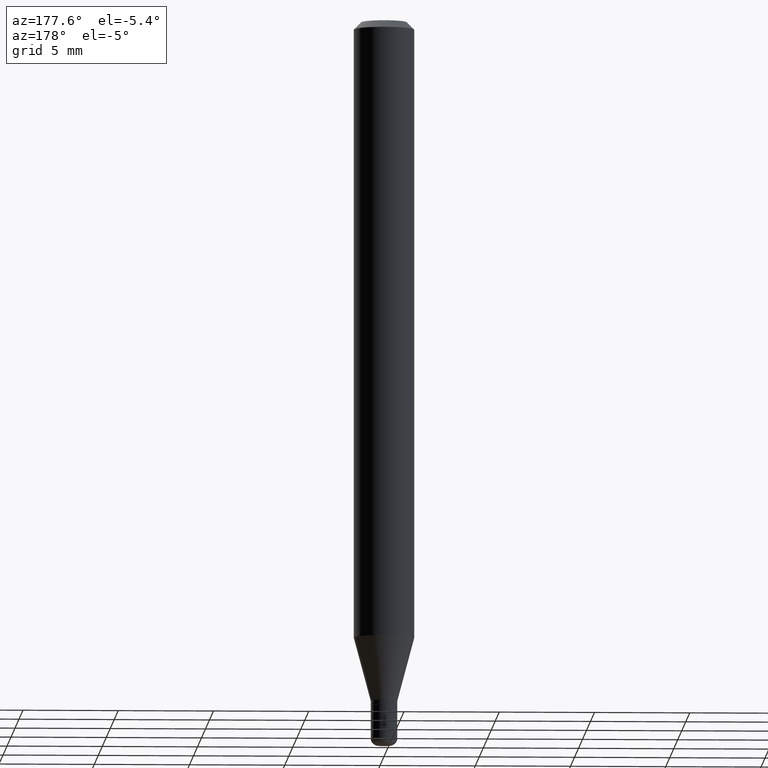
[diagram: clean part render]
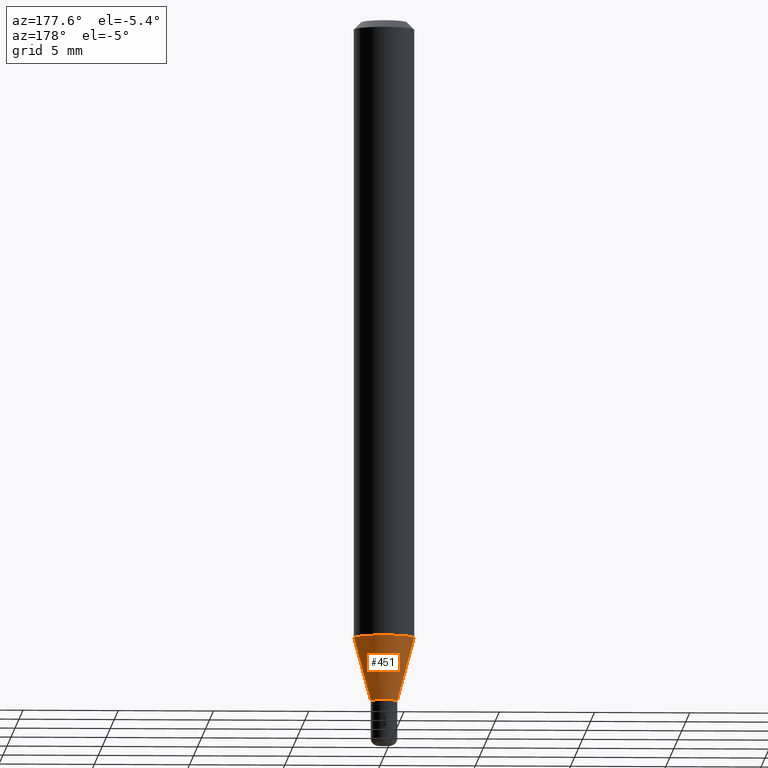
[diagram: same view with one face highlighted and labeled with its STEP entity id]
A machine part, auxiliary view. The second image highlights one B-rep face of the part: STEP entity #451.
In plain terms, the highlighted conical surface has half-angle 15 deg.
Its self-contained STEP definition (entity closure, byte-faithful):
#20 = LINE ( 'NONE', #182, #93 ) ;
#21 = CARTESIAN_POINT ( 'NONE',  ( 3.440774610302487541E-29, -4.912514243752305891E-15, -1.407000000000000028 ) ) ;
#45 = AXIS2_PLACEMENT_3D ( 'NONE', #456, #416, #111 ) ;
#65 = VECTOR ( 'NONE', #197, 39.37007874015748854 ) ;
#72 = DIRECTION ( 'NONE',  ( -2.445468806185136597E-29, 3.491481338843145583E-15, 1.000000000000000000 ) ) ;
#84 = CARTESIAN_POINT ( 'NONE',  ( -0.02750000000000000708, -4.364738262031039467E-15, -1.407000000000000028 ) ) ;
#93 = VECTOR ( 'NONE', #332, 39.37007874015748854 ) ;
#96 = ORIENTED_EDGE ( 'NONE', *, *, #347, .T. ) ;
#108 = VERTEX_POINT ( 'NONE', #84 ) ;
#111 = DIRECTION ( 'NONE',  ( 1.000000000000000000, -6.982962677686262766E-15, 0.000000000000000000 ) ) ;
#127 = EDGE_CURVE ( 'NONE', #280, #322, #247, .T. ) ;
#152 = DIRECTION ( 'NONE',  ( -2.445468806185136597E-29, 3.491481338843145583E-15, 1.000000000000000000 ) ) ;
#182 = CARTESIAN_POINT ( 'NONE',  ( 0.02750000000000000708, -5.104545717388678383E-15, -1.407000000000000028 ) ) ;
#193 = EDGE_CURVE ( 'NONE', #409, #280, #20, .T. ) ;
#197 = DIRECTION ( 'NONE',  ( -0.2588190451025211281, 5.211531920934547886E-15, 0.9659258262890679791 ) ) ;
#198 = ORIENTED_EDGE ( 'NONE', *, *, #127, .F. ) ;
#232 = CARTESIAN_POINT ( 'NONE',  ( -0.02750000000000000708, -4.717114991418277772E-15, -1.407000000000000028 ) ) ;
#247 = CIRCLE ( 'NONE', #45, 0.06250000000000000000 ) ;
#248 = FACE_OUTER_BOUND ( 'NONE', #296, .T. ) ;
#267 = CARTESIAN_POINT ( 'NONE',  ( 0.02750000000000000708, -5.104545717388678383E-15, -1.407000000000000028 ) ) ;
#268 = CARTESIAN_POINT ( 'NONE',  ( 0.06250000000000000000, -4.892885909849255447E-15, -1.276378221735089635 ) ) ;
#272 = CARTESIAN_POINT ( 'NONE',  ( -0.06250000000000000000, -4.012361532643800373E-15, -1.276378221735089635 ) ) ;
#280 = VERTEX_POINT ( 'NONE', #268 ) ;
#283 = DIRECTION ( 'NONE',  ( 1.000000000000000000, -6.982962677686277755E-15, 0.000000000000000000 ) ) ;
#296 = EDGE_LOOP ( 'NONE', ( #364, #96, #198, #340 ) ) ;
#297 = DIRECTION ( 'NONE',  ( 1.000000000000000000, -6.982962677686277755E-15, 0.000000000000000000 ) ) ;
#322 = VERTEX_POINT ( 'NONE', #272 ) ;
#327 = CIRCLE ( 'NONE', #360, 0.02750000000000000708 ) ;
#332 = DIRECTION ( 'NONE',  ( 0.2588190451025211281, 1.565188264969622954E-15, 0.9659258262890679791 ) ) ;
#340 = ORIENTED_EDGE ( 'NONE', *, *, #193, .F. ) ;
#347 = EDGE_CURVE ( 'NONE', #108, #322, #432, .T. ) ;
#353 = EDGE_CURVE ( 'NONE', #409, #108, #327, .T. ) ;
#360 = AXIS2_PLACEMENT_3D ( 'NONE', #414, #152, #297 ) ;
#364 = ORIENTED_EDGE ( 'NONE', *, *, #353, .T. ) ;
#408 = CONICAL_SURFACE ( 'NONE', #483, 0.02750000000000000708, 0.2617993877991498519 ) ;
#409 = VERTEX_POINT ( 'NONE', #267 ) ;
#414 = CARTESIAN_POINT ( 'NONE',  ( 3.440774610302487541E-29, -4.912514243752305891E-15, -1.407000000000000028 ) ) ;
#416 = DIRECTION ( 'NONE',  ( -2.445468806185136597E-29, 3.491481338843145583E-15, 1.000000000000000000 ) ) ;
#432 = LINE ( 'NONE', #232, #65 ) ;
#451 = ADVANCED_FACE ( 'NONE', ( #248 ), #408, .T. ) ;
#456 = CARTESIAN_POINT ( 'NONE',  ( 3.121343126147216904E-29, -4.456450742493864567E-15, -1.276378221735089635 ) ) ;
#483 = AXIS2_PLACEMENT_3D ( 'NONE', #21, #72, #283 ) ;